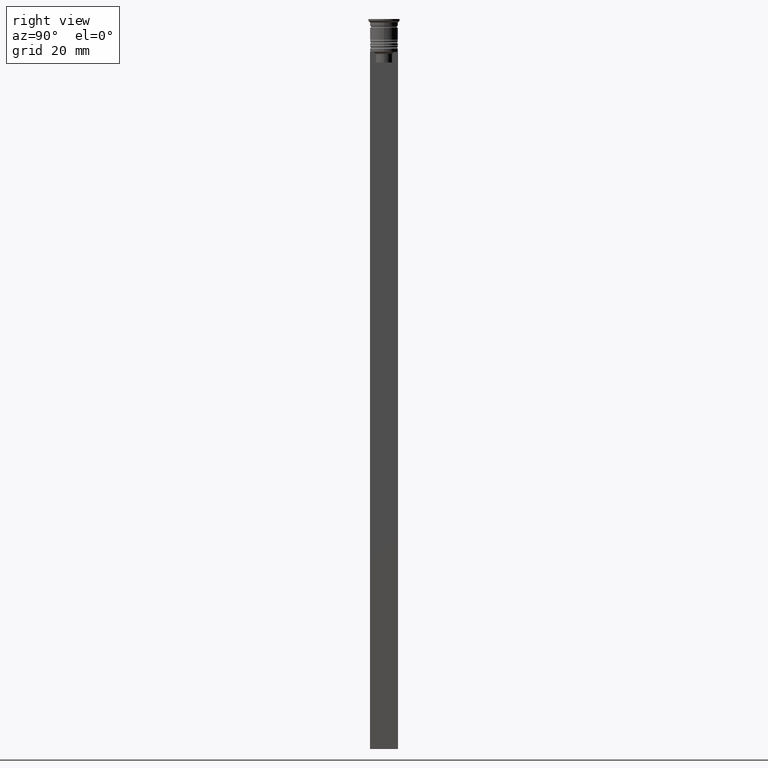
[diagram: clean part render]
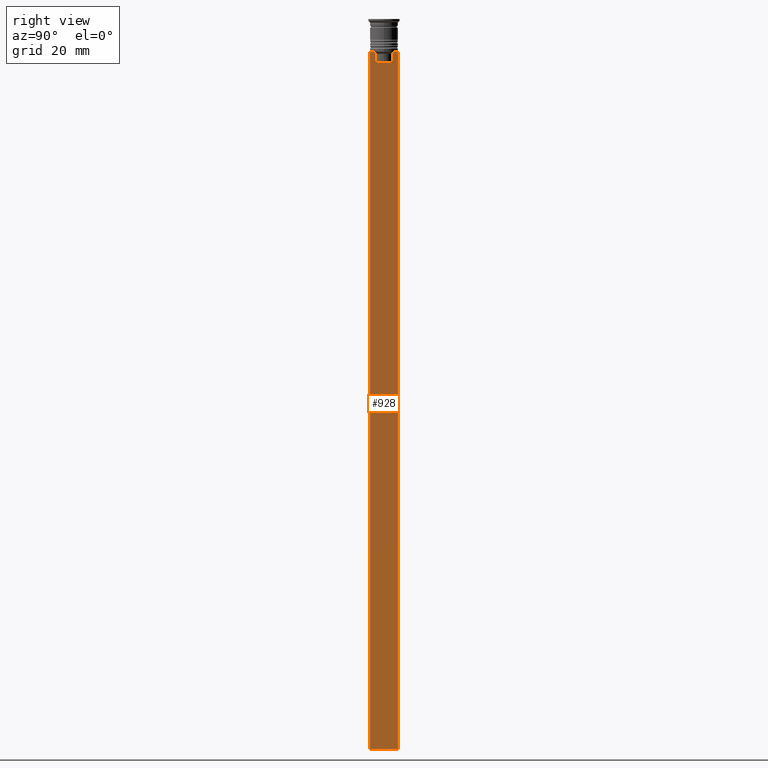
[diagram: same view with one face highlighted and labeled with its STEP entity id]
A machine part, right view. The second image highlights one B-rep face of the part: STEP entity #928.
In plain terms, the highlighted planar face has unit normal (-1, 0, 0).
Its self-contained STEP definition (entity closure, byte-faithful):
#6 = DIRECTION ( 'NONE',  ( 0.000000000000000000, -1.000000000000000000, 0.000000000000000000 ) ) ;
#20 = VECTOR ( 'NONE', #1049, 1000.000000000000000 ) ;
#21 = LINE ( 'NONE', #1190, #833 ) ;
#71 = EDGE_CURVE ( 'NONE', #975, #665, #319, .T. ) ;
#78 = CARTESIAN_POINT ( 'NONE',  ( 0.5000000000000000000, -4.000000000000000000, -1.437742251701450202 ) ) ;
#87 = CARTESIAN_POINT ( 'NONE',  ( 0.5000000000000000000, -4.000000000000000000, -9.500000000000000000 ) ) ;
#89 = VERTEX_POINT ( 'NONE', #1255 ) ;
#135 = DIRECTION ( 'NONE',  ( 0.000000000000000000, 0.000000000000000000, 1.000000000000000000 ) ) ;
#150 = VECTOR ( 'NONE', #452, 1000.000000000000000 ) ;
#191 = CARTESIAN_POINT ( 'NONE',  ( 0.5000000000000000000, -4.000000000000000000, -9.500000000000000000 ) ) ;
#242 = LINE ( 'NONE', #270, #20 ) ;
#245 = DIRECTION ( 'NONE',  ( 0.000000000000000000, 0.000000000000000000, -1.000000000000000000 ) ) ;
#253 = B_SPLINE_CURVE_WITH_KNOTS ( 'NONE', 3,
 ( #2030, #2195, #2206, #436 ),
 .UNSPECIFIED., .F., .F.,
 ( 4, 4 ),
 ( 0.004956812174141191595, 0.005670477137898149653 ),
 .UNSPECIFIED. ) ;
#269 = VECTOR ( 'NONE', #1654, 1000.000000000000000 ) ;
#270 = CARTESIAN_POINT ( 'NONE',  ( 0.5000000000000000000, -4.000000000000000000, -9.500000000000000000 ) ) ;
#292 = CARTESIAN_POINT ( 'NONE',  ( 0.5000000000000000000, -4.000000000000000000, -1.437742251701450202 ) ) ;
#302 = FACE_OUTER_BOUND ( 'NONE', #781, .T. ) ;
#319 = B_SPLINE_CURVE_WITH_KNOTS ( 'NONE', 3,
 ( #1637, #656, #2218, #458 ),
 .UNSPECIFIED., .F., .F.,
 ( 4, 4 ),
 ( 0.01178336557230038467, 0.01249758354768160280 ),
 .UNSPECIFIED. ) ;
#336 = ORIENTED_EDGE ( 'NONE', *, *, #2492, .T. ) ;
#338 = DIRECTION ( 'NONE',  ( -1.000000000000000000, 0.000000000000000000, 0.000000000000000000 ) ) ;
#427 = EDGE_CURVE ( 'NONE', #744, #719, #1848, .T. ) ;
#436 = CARTESIAN_POINT ( 'NONE',  ( 0.5000000000000000000, 2.347338918861097135, -10.00000000000000000 ) ) ;
#452 = DIRECTION ( 'NONE',  ( 0.000000000000000000, 1.000000000000000000, 0.000000000000000000 ) ) ;
#458 = CARTESIAN_POINT ( 'NONE',  ( 0.5000000000000000000, -2.856571371417138572, -9.500000000000000000 ) ) ;
#472 = EDGE_CURVE ( 'NONE', #719, #1941, #253, .T. ) ;
#478 = DIRECTION ( 'NONE',  ( 0.000000000000000000, -1.000000000000000000, 0.000000000000000000 ) ) ;
#591 = VERTEX_POINT ( 'NONE', #1286 ) ;
#597 = VECTOR ( 'NONE', #6, 1000.000000000000000 ) ;
#602 = CARTESIAN_POINT ( 'NONE',  ( 0.5000000000000000000, 2.347338918861097135, -12.50000000000000000 ) ) ;
#636 = CARTESIAN_POINT ( 'NONE',  ( 0.5000000000000000000, 2.399999999999996803, -12.50000000000000000 ) ) ;
#644 = LINE ( 'NONE', #2018, #1698 ) ;
#649 = ORIENTED_EDGE ( 'NONE', *, *, #2307, .T. ) ;
#656 = CARTESIAN_POINT ( 'NONE',  ( 0.5000000000000000000, -2.517408374291112416, -9.833662228483172285 ) ) ;
#665 = VERTEX_POINT ( 'NONE', #2151 ) ;
#719 = VERTEX_POINT ( 'NONE', #2327 ) ;
#725 = EDGE_CURVE ( 'NONE', #665, #591, #21, .T. ) ;
#744 = VERTEX_POINT ( 'NONE', #777 ) ;
#765 = DIRECTION ( 'NONE',  ( -0.000000000000000000, -0.000000000000000000, 1.000000000000000000 ) ) ;
#777 = CARTESIAN_POINT ( 'NONE',  ( 0.5000000000000000000, 3.867815921162741422, -9.500000000000000000 ) ) ;
#781 = EDGE_LOOP ( 'NONE', ( #848, #2508, #2320, #2375, #649, #2176, #1791, #1928, #784, #336, #1502, #1942 ) ) ;
#784 = ORIENTED_EDGE ( 'NONE', *, *, #1729, .T. ) ;
#833 = VECTOR ( 'NONE', #1976, 1000.000000000000000 ) ;
#848 = ORIENTED_EDGE ( 'NONE', *, *, #427, .T. ) ;
#872 = CARTESIAN_POINT ( 'NONE',  ( 0.5000000000000000000, 4.000000000000000000, -1.437742251701450202 ) ) ;
#928 = ADVANCED_FACE ( 'NONE', ( #302 ), #2442, .F. ) ;
#975 = VERTEX_POINT ( 'NONE', #1910 ) ;
#1009 = LINE ( 'NONE', #2391, #150 ) ;
#1020 = CARTESIAN_POINT ( 'NONE',  ( 0.5000000000000000000, -2.347338918861097135, -12.50000000000000000 ) ) ;
#1049 = DIRECTION ( 'NONE',  ( 0.000000000000000000, -1.000000000000000000, 0.000000000000000000 ) ) ;
#1052 = LINE ( 'NONE', #78, #2473 ) ;
#1159 = VECTOR ( 'NONE', #478, 1000.000000000000000 ) ;
#1182 = VERTEX_POINT ( 'NONE', #2163 ) ;
#1190 = CARTESIAN_POINT ( 'NONE',  ( 0.5000000000000000000, -4.000000000000000000, -9.500000000000000000 ) ) ;
#1255 = CARTESIAN_POINT ( 'NONE',  ( 0.5000000000000000000, -4.000000000000000000, -9.500000000000000000 ) ) ;
#1286 = CARTESIAN_POINT ( 'NONE',  ( 0.5000000000000000000, -3.867815921162741422, -9.500000000000000000 ) ) ;
#1373 = EDGE_CURVE ( 'NONE', #1182, #1666, #2046, .T. ) ;
#1454 = CARTESIAN_POINT ( 'NONE',  ( 0.5000000000000000000, 4.000000000000000000, -209.5000000000000284 ) ) ;
#1470 = CARTESIAN_POINT ( 'NONE',  ( 0.5000000000000000000, -2.347338918861097135, 0.000000000000000000 ) ) ;
#1496 = LINE ( 'NONE', #1470, #2477 ) ;
#1502 = ORIENTED_EDGE ( 'NONE', *, *, #1373, .F. ) ;
#1567 = AXIS2_PLACEMENT_3D ( 'NONE', #292, #338, #135 ) ;
#1598 = LINE ( 'NONE', #191, #597 ) ;
#1620 = VECTOR ( 'NONE', #2237, 1000.000000000000000 ) ;
#1626 = DIRECTION ( 'NONE',  ( 0.000000000000000000, 0.000000000000000000, -1.000000000000000000 ) ) ;
#1637 = CARTESIAN_POINT ( 'NONE',  ( 0.5000000000000000000, -2.347338918861097135, -10.00000000000000000 ) ) ;
#1654 = DIRECTION ( 'NONE',  ( 0.000000000000000000, 0.000000000000000000, -1.000000000000000000 ) ) ;
#1666 = VERTEX_POINT ( 'NONE', #1454 ) ;
#1683 = EDGE_CURVE ( 'NONE', #1941, #1884, #644, .T. ) ;
#1698 = VECTOR ( 'NONE', #1626, 1000.000000000000000 ) ;
#1729 = EDGE_CURVE ( 'NONE', #89, #1885, #1052, .T. ) ;
#1791 = ORIENTED_EDGE ( 'NONE', *, *, #725, .T. ) ;
#1793 = LINE ( 'NONE', #636, #1620 ) ;
#1795 = CARTESIAN_POINT ( 'NONE',  ( 0.5000000000000000000, -4.000000000000000000, -209.5000000000000284 ) ) ;
#1848 = LINE ( 'NONE', #87, #1159 ) ;
#1883 = EDGE_CURVE ( 'NONE', #1182, #744, #1598, .T. ) ;
#1884 = VERTEX_POINT ( 'NONE', #602 ) ;
#1885 = VERTEX_POINT ( 'NONE', #1795 ) ;
#1910 = CARTESIAN_POINT ( 'NONE',  ( 0.5000000000000000000, -2.347338918861097135, -10.00000000000000000 ) ) ;
#1928 = ORIENTED_EDGE ( 'NONE', *, *, #2013, .T. ) ;
#1941 = VERTEX_POINT ( 'NONE', #2152 ) ;
#1942 = ORIENTED_EDGE ( 'NONE', *, *, #1883, .T. ) ;
#1976 = DIRECTION ( 'NONE',  ( 0.000000000000000000, -1.000000000000000000, 0.000000000000000000 ) ) ;
#2013 = EDGE_CURVE ( 'NONE', #591, #89, #242, .T. ) ;
#2018 = CARTESIAN_POINT ( 'NONE',  ( 0.5000000000000000000, 2.347338918861097135, 0.000000000000000000 ) ) ;
#2030 = CARTESIAN_POINT ( 'NONE',  ( 0.5000000000000000000, 2.856571371417138572, -9.500000000000000000 ) ) ;
#2046 = LINE ( 'NONE', #872, #269 ) ;
#2151 = CARTESIAN_POINT ( 'NONE',  ( 0.5000000000000000000, -2.856571371417138572, -9.500000000000000000 ) ) ;
#2152 = CARTESIAN_POINT ( 'NONE',  ( 0.5000000000000000000, 2.347338918861097135, -10.00000000000000000 ) ) ;
#2163 = CARTESIAN_POINT ( 'NONE',  ( 0.5000000000000000000, 4.000000000000000000, -9.500000000000000000 ) ) ;
#2176 = ORIENTED_EDGE ( 'NONE', *, *, #71, .T. ) ;
#2195 = CARTESIAN_POINT ( 'NONE',  ( 0.5000000000000000000, 2.687094542495898075, -9.666938847453439010 ) ) ;
#2206 = CARTESIAN_POINT ( 'NONE',  ( 0.5000000000000000000, 2.517407211010872281, -9.833663366238582171 ) ) ;
#2218 = CARTESIAN_POINT ( 'NONE',  ( 0.5000000000000000000, -2.687095498514037839, -9.666937905752043037 ) ) ;
#2237 = DIRECTION ( 'NONE',  ( 0.000000000000000000, -1.000000000000000000, 0.000000000000000000 ) ) ;
#2307 = EDGE_CURVE ( 'NONE', #2472, #975, #1496, .T. ) ;
#2320 = ORIENTED_EDGE ( 'NONE', *, *, #1683, .T. ) ;
#2327 = CARTESIAN_POINT ( 'NONE',  ( 0.5000000000000000000, 2.856571371417138572, -9.500000000000000000 ) ) ;
#2375 = ORIENTED_EDGE ( 'NONE', *, *, #2498, .T. ) ;
#2391 = CARTESIAN_POINT ( 'NONE',  ( 0.5000000000000000000, -4.000000000000000000, -209.5000000000000284 ) ) ;
#2442 = PLANE ( 'NONE',  #1567 ) ;
#2472 = VERTEX_POINT ( 'NONE', #1020 ) ;
#2473 = VECTOR ( 'NONE', #245, 1000.000000000000000 ) ;
#2477 = VECTOR ( 'NONE', #765, 1000.000000000000000 ) ;
#2492 = EDGE_CURVE ( 'NONE', #1885, #1666, #1009, .T. ) ;
#2498 = EDGE_CURVE ( 'NONE', #1884, #2472, #1793, .T. ) ;
#2508 = ORIENTED_EDGE ( 'NONE', *, *, #472, .T. ) ;